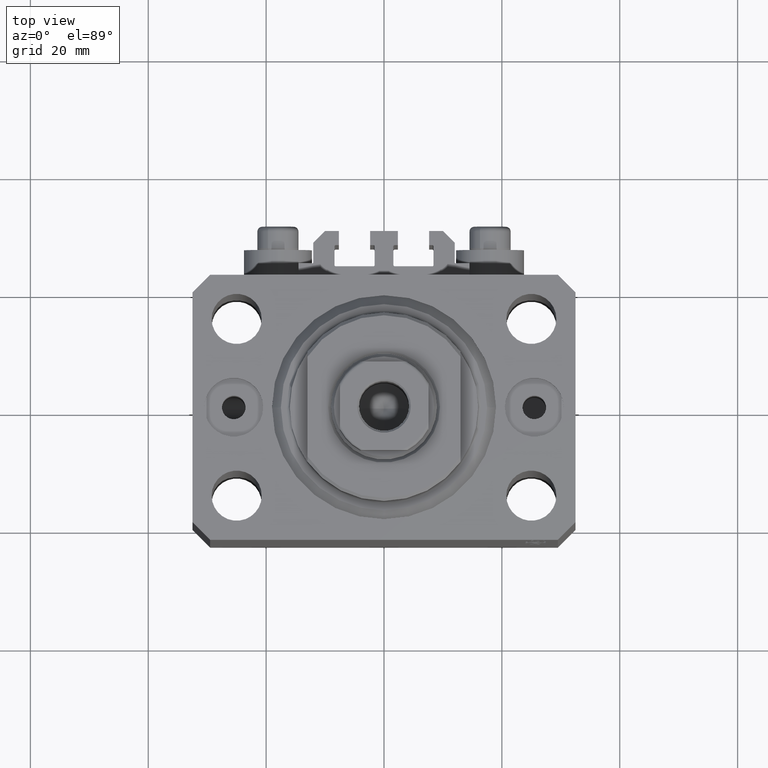
[diagram: clean part render]
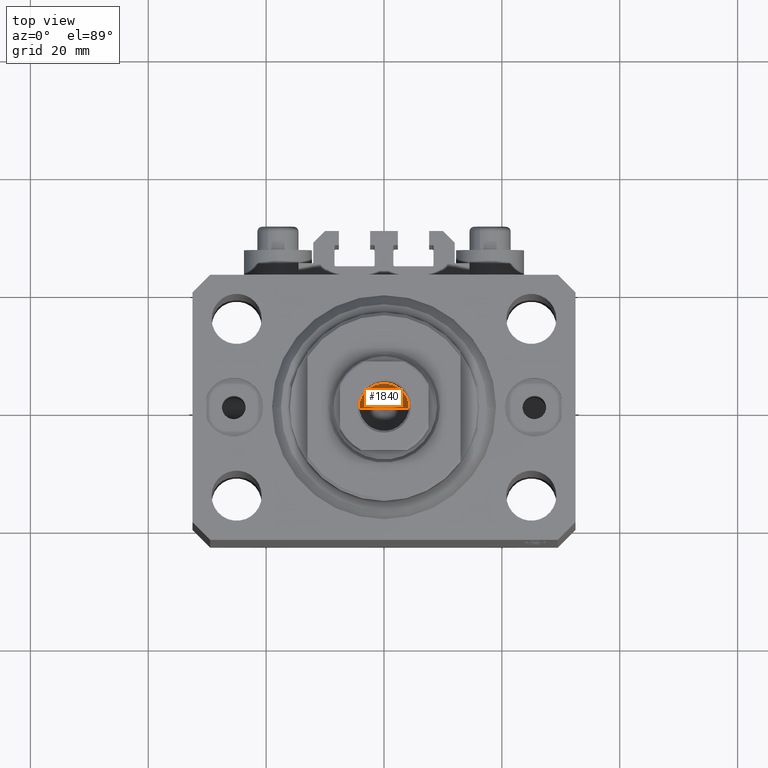
[diagram: same view with one face highlighted and labeled with its STEP entity id]
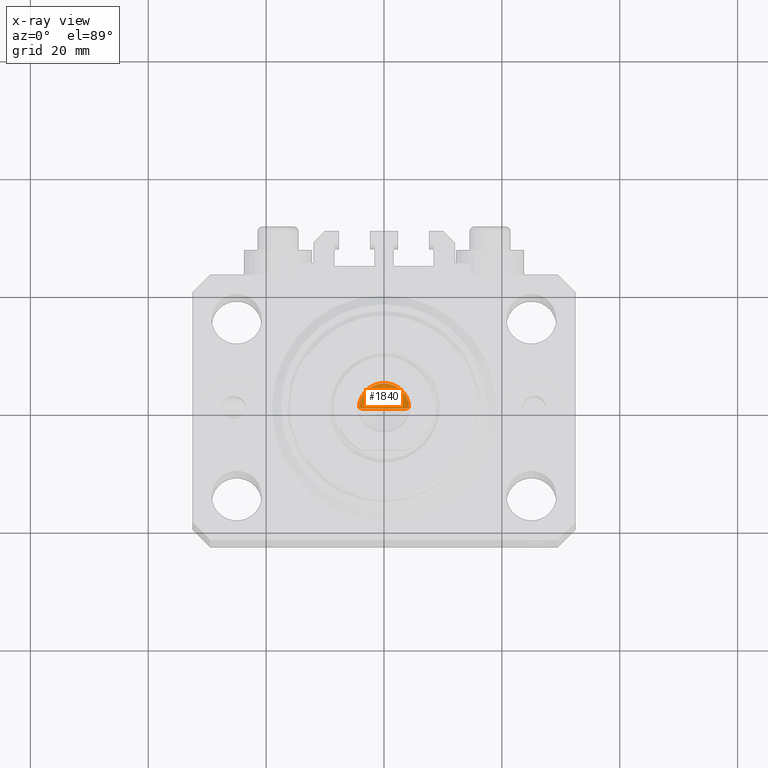
[diagram: x-ray of the same camera — body ghosted, the highlighted face saturated]
A machine part, top view. The second image highlights one B-rep face of the part: STEP entity #1840.
The next image is the same camera in x-ray: the body ghosted, the highlighted face saturated — about 0% of this face is hidden behind the body in this view.
In plain terms, the highlighted conical surface has half-angle 59 deg.
Its self-contained STEP definition (entity closure, byte-faithful):
#566 = ORIENTED_EDGE ( 'NONE', *, *, #36517, .T. ) ;
#1840 = ADVANCED_FACE ( 'NONE', ( #32329 ), #38239, .F. ) ;
#2882 = CARTESIAN_POINT ( 'NONE',  ( -6.748699724488696097E-15, 0.000000000000000000, 56.44634236913287140 ) ) ;
#3910 = ORIENTED_EDGE ( 'NONE', *, *, #45854, .F. ) ;
#6725 = AXIS2_PLACEMENT_3D ( 'NONE', #18527, #43597, #39775 ) ;
#7313 = DIRECTION ( 'NONE',  ( 0.8571673007021117785, 0.000000000000000000, 0.5150380749100550437 ) ) ;
#7834 = VECTOR ( 'NONE', #25678, 1000.000000000000000 ) ;
#8398 = VERTEX_POINT ( 'NONE', #11392 ) ;
#9042 = VECTOR ( 'NONE', #7313, 1000.000000000000000 ) ;
#11092 = CARTESIAN_POINT ( 'NONE',  ( -4.249999999999994671, 5.204748896376244783E-16, 59.00000000000000711 ) ) ;
#11392 = CARTESIAN_POINT ( 'NONE',  ( -4.249999999999994671, 5.204748896376244783E-16, 59.00000000000000711 ) ) ;
#15860 = LINE ( 'NONE', #11092, #7834 ) ;
#18527 = CARTESIAN_POINT ( 'NONE',  ( 0.000000000000000000, 0.000000000000000000, 59.00000000000000711 ) ) ;
#19191 = AXIS2_PLACEMENT_3D ( 'NONE', #43319, #46905, #39723 ) ;
#21216 = CIRCLE ( 'NONE', #6725, 4.249999999999994671 ) ;
#24929 = ORIENTED_EDGE ( 'NONE', *, *, #36506, .T. ) ;
#25678 = DIRECTION ( 'NONE',  ( -0.8571673007021117785, 1.049727191138617956E-16, 0.5150380749100550437 ) ) ;
#31085 = VERTEX_POINT ( 'NONE', #2882 ) ;
#32329 = FACE_OUTER_BOUND ( 'NONE', #46958, .T. ) ;
#33078 = LINE ( 'NONE', #46955, #9042 ) ;
#36506 = EDGE_CURVE ( 'NONE', #45985, #8398, #21216, .T. ) ;
#36517 = EDGE_CURVE ( 'NONE', #31085, #45985, #33078, .T. ) ;
#38239 = CONICAL_SURFACE ( 'NONE', #19191, 4.249999999999994671, 1.029744258676653423 ) ;
#39723 = DIRECTION ( 'NONE',  ( 1.000000000000000000, 0.000000000000000000, 0.000000000000000000 ) ) ;
#39775 = DIRECTION ( 'NONE',  ( 1.000000000000000000, 0.000000000000000000, 0.000000000000000000 ) ) ;
#42591 = CARTESIAN_POINT ( 'NONE',  ( 4.249999999999994671, 0.000000000000000000, 59.00000000000000711 ) ) ;
#43319 = CARTESIAN_POINT ( 'NONE',  ( 0.000000000000000000, 0.000000000000000000, 59.00000000000000711 ) ) ;
#43597 = DIRECTION ( 'NONE',  ( -0.000000000000000000, -0.000000000000000000, 1.000000000000000000 ) ) ;
#45854 = EDGE_CURVE ( 'NONE', #31085, #8398, #15860, .T. ) ;
#45985 = VERTEX_POINT ( 'NONE', #42591 ) ;
#46905 = DIRECTION ( 'NONE',  ( -0.000000000000000000, -0.000000000000000000, 1.000000000000000000 ) ) ;
#46955 = CARTESIAN_POINT ( 'NONE',  ( 4.249999999999994671, 0.000000000000000000, 59.00000000000000711 ) ) ;
#46958 = EDGE_LOOP ( 'NONE', ( #3910, #566, #24929 ) ) ;